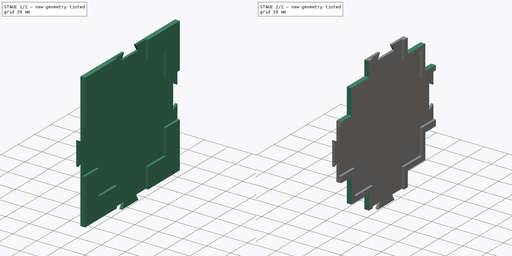
[diagram: build sequence overview — one tinted view per stage of 2, left to right]
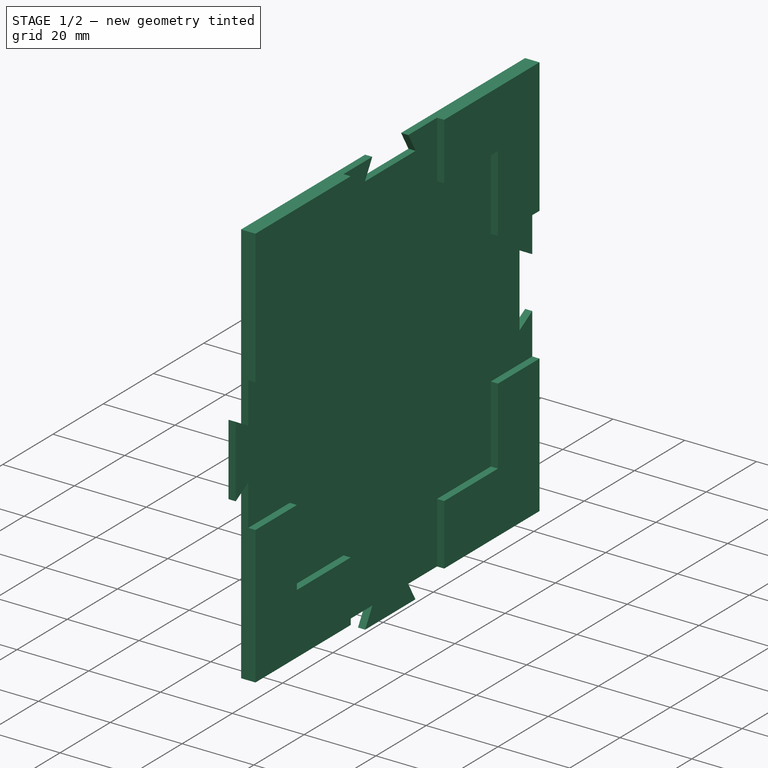
[diagram: stage 1 of 2 — iso view after this stage's code; geometry added in this stage tinted green]
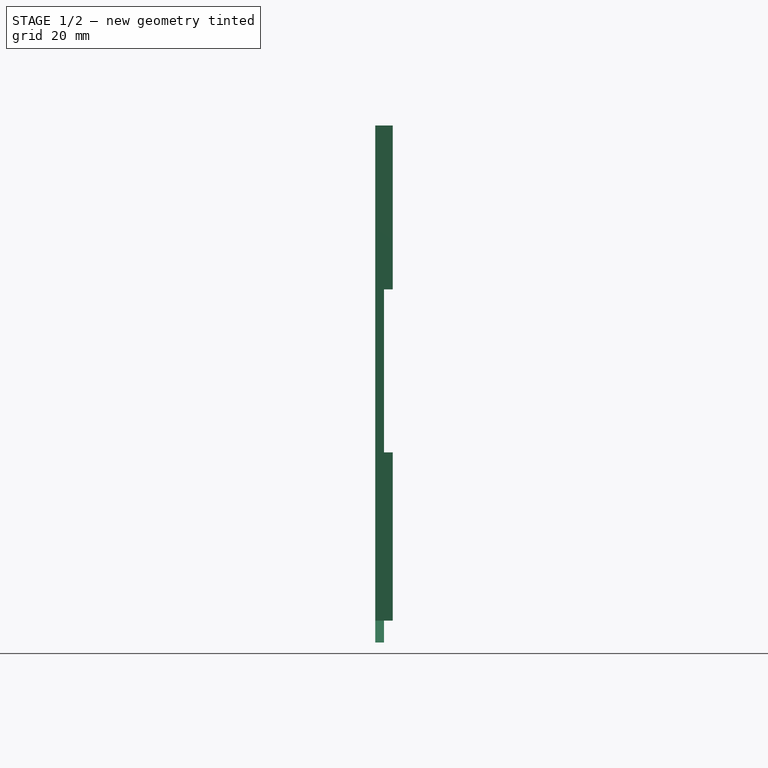
[diagram: stage 1 of 2 — front view after this stage's code; geometry added in this stage tinted green]
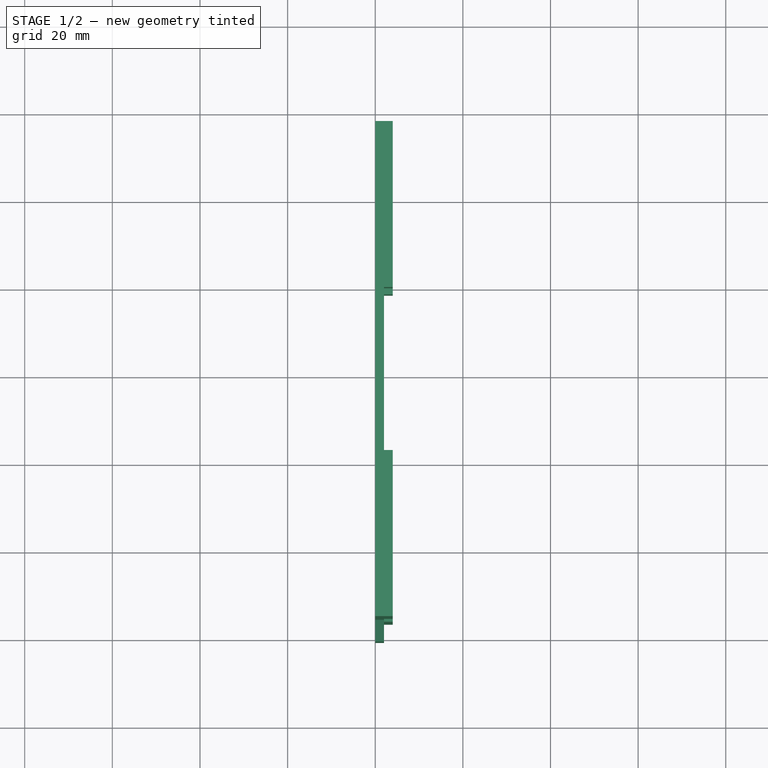
[diagram: stage 1 of 2 — top view after this stage's code; geometry added in this stage tinted green]
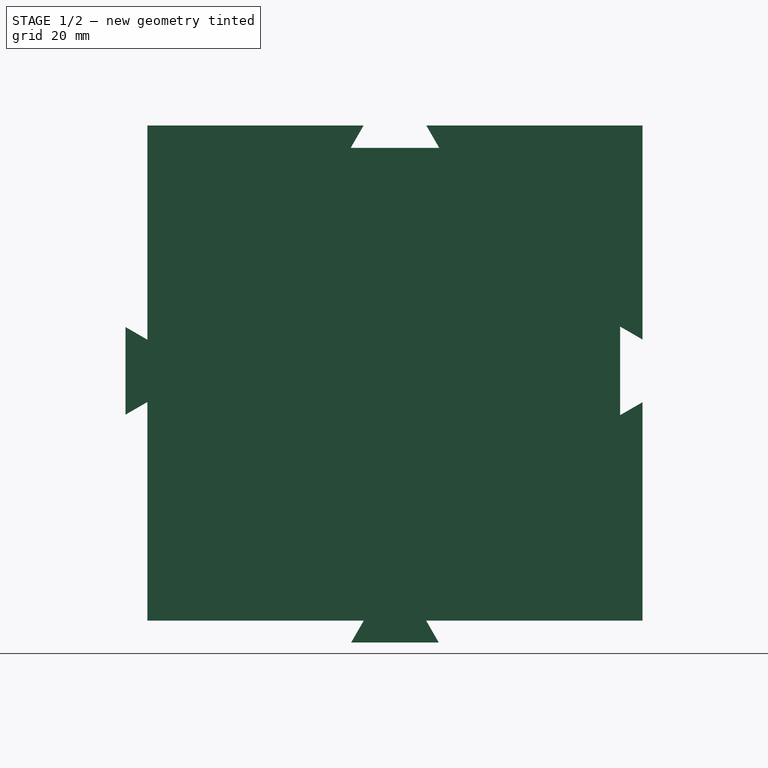
[diagram: stage 1 of 2 — right view after this stage's code; geometry added in this stage tinted green]
FCSTD DOCUMENT  (FreeCAD 0.14R3700 (Git))
Label: MunkenQuestTiltHolder
License: CC-BY 3.0
LicenseURL: http://creativecommons.org/licenses/by/3.0/
objects: Sketcher::SketchObject×3, PartDesign::Pocket×2, PartDesign::Pad×1
note: 9 computed .brp shape members not serialized (recipe doc carries the construction recipe); baked Part::Feature solids carry a one-line shape summary decoded from their .brp

FEATURE [Sketcher::SketchObject] Sketch001
  Placement = pos=(0,0,0) rot=(0.57735,0.57735,0.57735;2.0944rad)
  sketch-geometry (28):
    g0: LineSegment StartX=56.5 StartY=56 StartZ=0 EndX=56.5 EndY=39 EndZ=0
    g1: LineSegment StartX=-56.5 StartY=39 StartZ=0 EndX=-56.5 EndY=56 EndZ=0
    g2: LineSegment StartX=-56.5 StartY=-40 StartZ=0 EndX=-56.5 EndY=-57 EndZ=0
    g3: LineSegment StartX=56.5 StartY=-40 StartZ=0 EndX=56.5 EndY=-57 EndZ=0
    g4: LineSegment StartX=-39.5 StartY=-57 StartZ=0 EndX=-56.5 EndY=-57 EndZ=0
    g5: LineSegment StartX=39.5 StartY=-57 StartZ=0 EndX=56.5 EndY=-57 EndZ=0
    g6: LineSegment StartX=-56.5 StartY=56 StartZ=0 EndX=-39.5 EndY=56 EndZ=0
    g7: LineSegment StartX=39.5 StartY=56 StartZ=0 EndX=56.5 EndY=56 EndZ=0
    g8: LineSegment StartX=-61.5 StartY=10 StartZ=0 EndX=-61.5 EndY=-10 EndZ=0
    g9: LineSegment StartX=-61.5 StartY=-10 StartZ=0 EndX=-56.5 EndY=-7.11325 EndZ=0
    g10: LineSegment StartX=-56.5 StartY=7.11325 StartZ=0 EndX=-61.5 EndY=10 EndZ=0
    g11: LineSegment StartX=-56.5 StartY=39 StartZ=0 EndX=-56.5 EndY=7.11325 EndZ=0
    g12: LineSegment StartX=-56.5 StartY=-7.11325 StartZ=0 EndX=-56.5 EndY=-40 EndZ=0
    g13: LineSegment StartX=51.4 StartY=10.1 StartZ=0 EndX=51.4 EndY=-10.1 EndZ=0
    g14: LineSegment StartX=51.4 StartY=-10.1 StartZ=0 EndX=56.5 EndY=-7.15551 EndZ=0
    g15: LineSegment StartX=56.5 StartY=7.15551 StartZ=0 EndX=51.4 EndY=10.1 EndZ=0
    g16: LineSegment StartX=56.5 StartY=39 StartZ=0 EndX=56.5 EndY=7.15551 EndZ=0
    g17: LineSegment StartX=56.5 StartY=-7.15551 StartZ=0 EndX=56.5 EndY=-40 EndZ=0
    g18: LineSegment StartX=-7.11325 StartY=-57 StartZ=0 EndX=-10 EndY=-62 EndZ=0
    g19: LineSegment StartX=-10 StartY=-62 StartZ=0 EndX=10 EndY=-62 EndZ=0
    g20: LineSegment StartX=10 StartY=-62 StartZ=0 EndX=7.11325 EndY=-57 EndZ=0
    g21: LineSegment StartX=7.11325 StartY=-57 StartZ=0 EndX=39.5 EndY=-57 EndZ=0
    g22: LineSegment StartX=-39.5 StartY=-57 StartZ=0 EndX=-7.11325 EndY=-57 EndZ=0
    g23: LineSegment StartX=-7.15551 StartY=56 StartZ=0 EndX=-10.1 EndY=50.9 EndZ=0
    g24: LineSegment StartX=-10.1 StartY=50.9 StartZ=0 EndX=10.1 EndY=50.9 EndZ=0
    g25: LineSegment StartX=10.1 StartY=50.9 StartZ=0 EndX=7.15551 EndY=56 EndZ=0
    g26: LineSegment StartX=-39.5 StartY=56 StartZ=0 EndX=-7.15551 EndY=56 EndZ=0
    g27: LineSegment StartX=7.15551 StartY=56 StartZ=0 EndX=39.5 EndY=56 EndZ=0
  constraints (83):
    c: Vertical(g0)
    c: DistanceX(g-1,g1) = -56.5
    c: DistanceY(g-1,g1) = 56
    c: Vertical(g1)
    c: Vertical(g2)
    c: Tangent(g0,g3)
    c: Horizontal(g5)
    c: Coincident(g3,g5)
    c: Horizontal(g4)
    c: Coincident(g2,g4)
    c: DistanceX(g2,g3) = 113
    c: DistanceY(g2) = -17
    c: Horizontal(g6)
    c: Horizontal(g7)
    c: Coincident(g1,g6)
    c: Coincident(g0,g7)
    c: Equal(g1,g6)
    c: Equal(g6,g7)
    c: Equal(g7,g0)
    c: Equal(g0,g2)
    c: Equal(g2,g4)
    c: Equal(g4,g5)
    c: Equal(g5,g3)
    c: Coincident(g8,g9)
    c: Coincident(g8,g10)
    c: Vertical(g8)
    c: Angle(g8,g10) = 1.0472
    c: Angle(g9,g8) = 1.0472
    c: DistanceY(g8) = -20
    c: Equal(g10,g9)
    c: DistanceY(g-1,g8) = -10
    c: Vertical(g11)
    c: Coincident(g2,g12)
    c: Coincident(g1,g11)
    c: Coincident(g11,g10)
    c: PointOnObject(g12,g9)
    c: Tangent(g11,g12)
    c: DistanceX(g8,g10) = 5
    c: Coincident(g13,g14)
    c: Coincident(g13,g15)
    c: Angle(g13,g15) = 1.0472
    c: Vertical(g13)
    c: Angle(g14,g13) = 1.0472
    c: Equal(g15,g14)
    c: DistanceY(g13) = -20.2
    c: DistanceX(g13,g15) = 5.1
    c: Coincident(g0,g16)
    c: Vertical(g16)
    c: Coincident(g15,g16)
    c: DistanceY(g-1,g13) = -10.1
    c: Coincident(g3,g17)
    c: Coincident(g14,g17)
    c: Coincident(g18,g19)
    c: Coincident(g19,g20)
    c: Horizontal(g19)
    c: Angle(g19,g18) = 1.0472
    c: Angle(g20,g19) = 1.0472
    c: DistanceX(g19) = 20
    c: Equal(g18,g20)
    c: DistanceY(g19,g20) = 5
    c: DistanceX(g-1,g19) = 10
    c: Coincident(g5,g21)
    c: Horizontal(g21)
    c: Coincident(g20,g21)
    c: Coincident(g4,g22)
    c: Horizontal(g22)
    c: Coincident(g18,g22)
    c: Coincident(g23,g24)
    c: Coincident(g24,g25)
    c: Horizontal(g24)
    c: Angle(g24,g23) = 1.0472
    c: Angle(g25,g24) = 1.0472
    c: DistanceY(g25,g24) = -5.1
    c: DistanceX(g23,g24) = 20.2
    c: DistanceX(g-1,g24) = 10.1
    c: Horizontal(g26)
    c: Coincident(g6,g26)
    c: Horizontal(g27)
    c: Coincident(g7,g27)
    c: Equal(g23,g25)
    c: Coincident(g26,g23)
    c: Coincident(g25,g27)
    c: DistanceY(g0,g3) = -113
FEATURE [PartDesign::Pad] Pad
  Length = 4
  Length2 = 3
  Placement = pos=(0,0,0) rot=(0.57735,0.57735,0.57735;2.0944rad)
  Sketch = -> Sketch001
  Type = 0
FEATURE [Sketcher::SketchObject] Sketch
  ExternalGeometry = -> [Pad]
  Placement = pos=(4,0,0) rot=(0.57735,0.57735,0.57735;2.0944rad)
  Support = -> Pad [Face30]
  sketch-geometry (20):
    g0: LineSegment StartX=-40 StartY=40 StartZ=0 EndX=-18.6 EndY=40 EndZ=0
    g1: LineSegment StartX=40 StartY=40 StartZ=0 EndX=40 EndY=18.6 EndZ=0
    g2: LineSegment StartX=40 StartY=-40 StartZ=0 EndX=18.6 EndY=-40 EndZ=0
    g3: LineSegment StartX=18.6 StartY=-40 StartZ=0 EndX=18.6 EndY=-62 EndZ=0
    g4: LineSegment StartX=18.6 StartY=-62 StartZ=0 EndX=-18.6 EndY=-62 EndZ=0
    g5: LineSegment StartX=-18.6 StartY=-62 StartZ=0 EndX=-18.6 EndY=-40 EndZ=0
    g6: LineSegment StartX=-62 StartY=18.6 StartZ=0 EndX=-40 EndY=18.6 EndZ=0
    g7: LineSegment StartX=-40 StartY=-18.6 StartZ=0 EndX=-62 EndY=-18.6 EndZ=0
    g8: LineSegment StartX=-62 StartY=-18.6 StartZ=0 EndX=-62 EndY=18.6 EndZ=0
    g9: LineSegment StartX=-40 StartY=18.6 StartZ=0 EndX=-40 EndY=40 EndZ=0
    g10: LineSegment StartX=-18.6 StartY=62 StartZ=0 EndX=18.6 EndY=62 EndZ=0
    g11: LineSegment StartX=18.6 StartY=62 StartZ=0 EndX=18.6 EndY=40 EndZ=0
    g12: LineSegment StartX=-18.6 StartY=40 StartZ=0 EndX=-18.6 EndY=62 EndZ=0
    g13: LineSegment StartX=18.6 StartY=40 StartZ=0 EndX=40 EndY=40 EndZ=0
    g14: LineSegment StartX=40 StartY=18.6 StartZ=0 EndX=62 EndY=18.6 EndZ=0
    g15: LineSegment StartX=62 StartY=18.6 StartZ=0 EndX=62 EndY=-18.6 EndZ=0
    g16: LineSegment StartX=62 StartY=-18.6 StartZ=0 EndX=40 EndY=-18.6 EndZ=0
    g17: LineSegment StartX=40 StartY=-18.6 StartZ=0 EndX=40 EndY=-40 EndZ=0
    g18: LineSegment StartX=-40 StartY=-18.6 StartZ=0 EndX=-40 EndY=-40 EndZ=0
    g19: LineSegment StartX=-40 StartY=-40 StartZ=0 EndX=-18.6 EndY=-40 EndZ=0
  constraints (61):
    c: Coincident(g13,g1)
    c: Coincident(g17,g2)
    c: Coincident(g9,g0)
    c: Horizontal(g0)
    c: Horizontal(g2)
    c: Vertical(g1)
    c: Coincident(g3,g4)
    c: Coincident(g4,g5)
    c: Horizontal(g4)
    c: Vertical(g3)
    c: Vertical(g5)
    c: DistanceX(g4) = -37.2
    c: Equal(g5,g3)
    c: Coincident(g7,g8)
    c: Coincident(g8,g6)
    c: Horizontal(g6)
    c: Horizontal(g7)
    c: Coincident(g9,g6)
    c: Equal(g8,g4)
    c: Equal(g7,g5)
    c: Equal(g6,g7)
    c: Coincident(g10,g11)
    c: Coincident(g12,g10)
    c: Horizontal(g10)
    c: Vertical(g11)
    c: Vertical(g12)
    c: Coincident(g0,g12)
    c: Coincident(g13,g11)
    c: Equal(g4,g10)
    c: Equal(g12,g6)
    c: Equal(g11,g12)
    c: Coincident(g14,g15)
    c: Coincident(g15,g16)
    c: Horizontal(g14)
    c: Horizontal(g16)
    c: Vertical(g15)
    c: Coincident(g1,g14)
    c: Coincident(g17,g16)
    c: Equal(g14,g16)
    c: Equal(g16,g11)
    c: Equal(g15,g4)
    c: DistanceY(g-1,g1) = 40
    c: Coincident(g18,g19)
    c: Vertical(g18)
    c: Horizontal(g19)
    c: Coincident(g7,g18)
    c: Coincident(g5,g19)
    c: Coincident(g2,g3)
    c: DistanceX(g-1,g1) = 40
    c: Vertical(g17)
    c: Vertical(g9)
    c: Vertical(g8)
    c: DistanceX(g-1,g2) = 18.6
    c: Equal(g13,g1)
    c: Equal(g1,g17)
    c: Equal(g2,g17)
    c: Equal(g17,g0)
    c: Equal(g0,g9)
    c: Equal(g9,g18)
    c: Equal(g18,g19)
    c: Tangent(g4,g-5)
FEATURE [PartDesign::Pocket] Pocket
  Length = 2
  Placement = pos=(0,0,0) rot=(0.57735,0.57735,0.57735;2.0944rad)
  Sketch = -> Sketch
  Type = 0
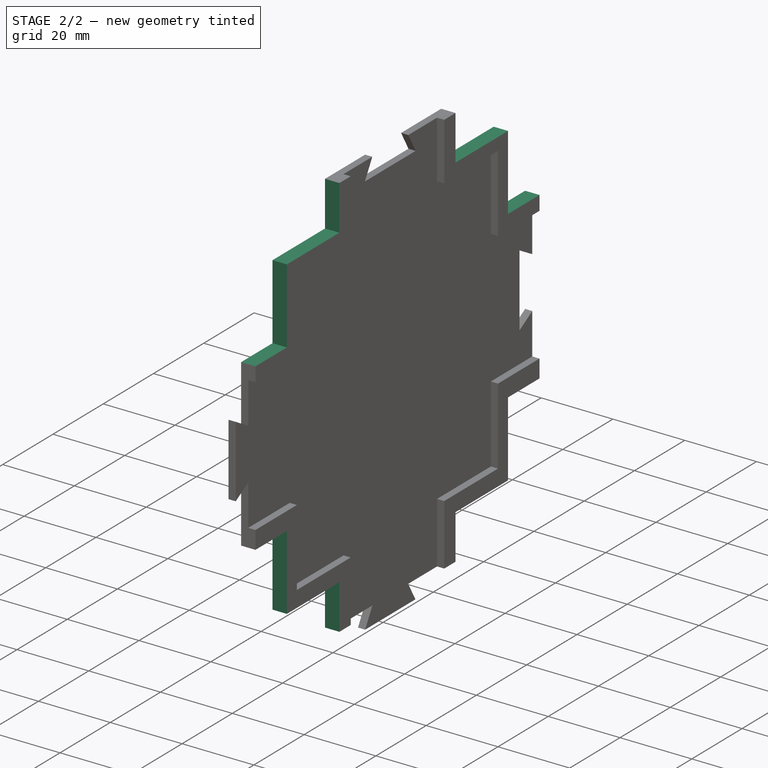
[diagram: stage 2 of 2 — iso view after this stage's code; geometry added in this stage tinted green]
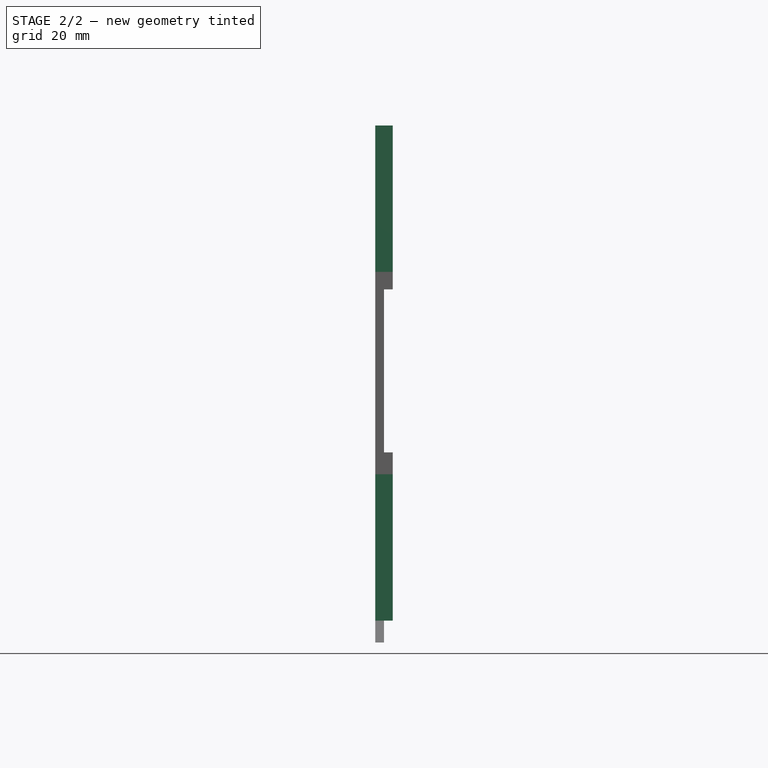
[diagram: stage 2 of 2 — front view after this stage's code; geometry added in this stage tinted green]
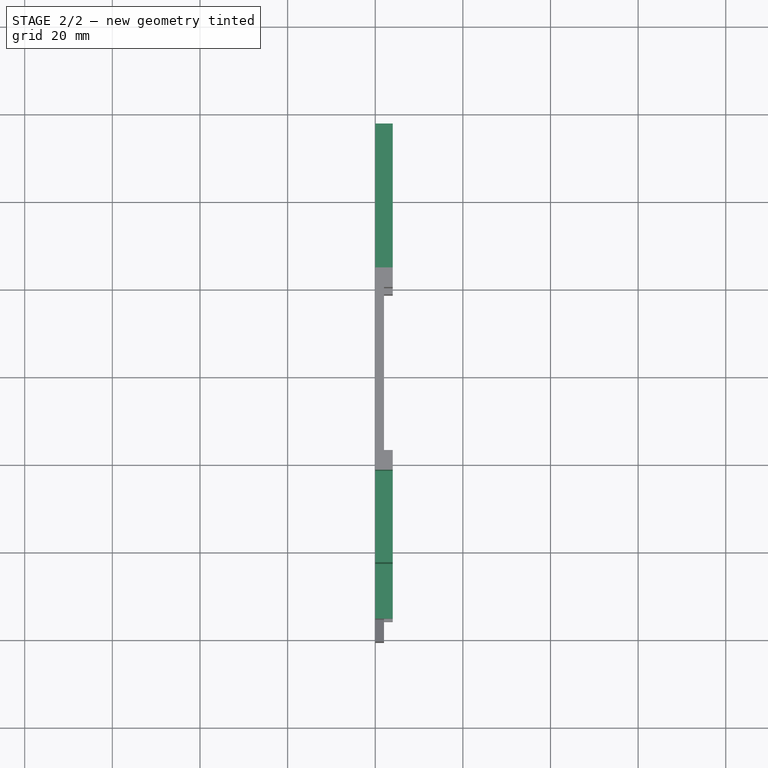
[diagram: stage 2 of 2 — top view after this stage's code; geometry added in this stage tinted green]
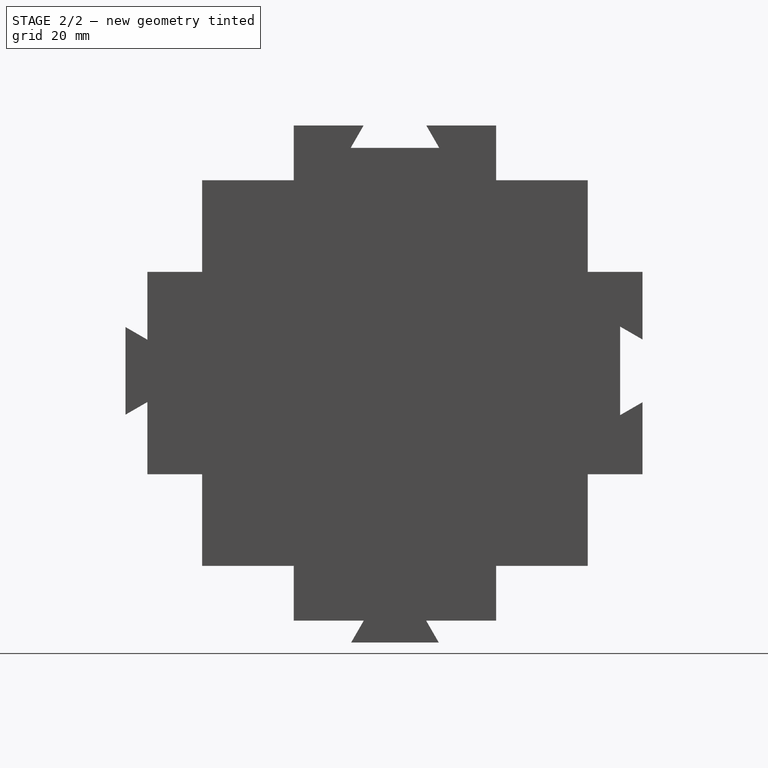
[diagram: stage 2 of 2 — right view after this stage's code; geometry added in this stage tinted green]
FEATURE [Sketcher::SketchObject] Sketch002
  Placement = pos=(4,0,0) rot=(0.57735,0.57735,0.57735;2.0944rad)
  Support = -> Pocket [Face5]
  sketch-geometry (24):
    g0: LineSegment StartX=-44 StartY=43.5 StartZ=0 EndX=-44 EndY=22.6 EndZ=0
    g1: LineSegment StartX=-44 StartY=22.6 StartZ=0 EndX=-56.5 EndY=22.6 EndZ=0
    g2: LineSegment StartX=-23.1 StartY=56 StartZ=0 EndX=-23.1 EndY=43.5 EndZ=0
    g3: LineSegment StartX=-23.1 StartY=43.5 StartZ=0 EndX=-44 EndY=43.5 EndZ=0
    g4: LineSegment StartX=-56.5 StartY=22.6 StartZ=0 EndX=-56.5 EndY=56 EndZ=0
    g5: LineSegment StartX=-56.5 StartY=56 StartZ=0 EndX=-23.1 EndY=56 EndZ=0
    g6: LineSegment StartX=23.1 StartY=43.5 StartZ=0 EndX=23.1 EndY=56 EndZ=0
    g7: LineSegment StartX=56.5 StartY=56 StartZ=0 EndX=56.5 EndY=22.6 EndZ=0
    g8: LineSegment StartX=56.5 StartY=22.6 StartZ=0 EndX=44 EndY=22.6 EndZ=0
    g9: LineSegment StartX=44 StartY=22.6 StartZ=0 EndX=44 EndY=43.5 EndZ=0
    g10: LineSegment StartX=44 StartY=43.5 StartZ=0 EndX=23.1 EndY=43.5 EndZ=0
    g11: LineSegment StartX=23.1 StartY=56 StartZ=0 EndX=56.5 EndY=56 EndZ=0
    g12: LineSegment StartX=-56.5 StartY=-23.6 StartZ=0 EndX=-44 EndY=-23.6 EndZ=0
    g13: LineSegment StartX=-44 StartY=-23.6 StartZ=0 EndX=-44 EndY=-44.5 EndZ=0
    g14: LineSegment StartX=-44 StartY=-44.5 StartZ=0 EndX=-23.1 EndY=-44.5 EndZ=0
    g15: LineSegment StartX=-23.1 StartY=-44.5 StartZ=0 EndX=-23.1 EndY=-57 EndZ=0
    g16: LineSegment StartX=-23.1 StartY=-57 StartZ=0 EndX=-56.5 EndY=-57 EndZ=0
    g17: LineSegment StartX=-56.5 StartY=-57 StartZ=0 EndX=-56.5 EndY=-23.6 EndZ=0
    g18: LineSegment StartX=23.1 StartY=-44.5 StartZ=0 EndX=44 EndY=-44.5 EndZ=0
    g19: LineSegment StartX=44 StartY=-44.5 StartZ=0 EndX=44 EndY=-23.6 EndZ=0
    g20: LineSegment StartX=44 StartY=-23.6 StartZ=0 EndX=56.5 EndY=-23.6 EndZ=0
    g21: LineSegment StartX=56.5 StartY=-23.6 StartZ=0 EndX=56.5 EndY=-57 EndZ=0
    g22: LineSegment StartX=56.5 StartY=-57 StartZ=0 EndX=23.1 EndY=-57 EndZ=0
    g23: LineSegment StartX=23.1 StartY=-57 StartZ=0 EndX=23.1 EndY=-44.5 EndZ=0
  constraints (63):
    c: Coincident(g0,g1)
    c: Horizontal(g1)
    c: Vertical(g0)
    c: Coincident(g2,g3)
    c: Horizontal(g3)
    c: Vertical(g2)
    c: Coincident(g0,g3)
    c: Horizontal(g5)
    c: Vertical(g4)
    c: Coincident(g4,g5)
    c: Coincident(g1,g4)
    c: Coincident(g2,g5)
    c: Coincident(g10,g6)
    c: Vertical(g6)
    c: Coincident(g7,g8)
    c: Coincident(g8,g9)
    c: Horizontal(g8)
    c: Vertical(g7)
    c: Vertical(g9)
    c: Coincident(g10,g9)
    c: Coincident(g7,g11)
    c: Coincident(g6,g11)
    c: Horizontal(g11)
    c: Equal(g2,g1)
    c: Equal(g1,g6)
    c: Equal(g6,g8)
    c: Coincident(g12,g13)
    c: Coincident(g13,g14)
    c: Coincident(g14,g15)
    c: Coincident(g15,g16)
    c: Coincident(g16,g17)
    c: Coincident(g12,g17)
    c: Vertical(g17)
    c: Horizontal(g12)
    c: Vertical(g13)
    c: Horizontal(g14)
    c: Vertical(g15)
    c: Horizontal(g16)
    c: Equal(g12,g15)
    c: Equal(g15,g1)
    c: Equal(g13,g14)
    c: Equal(g14,g0)
    c: Equal(g0,g3)
    c: Equal(g3,g10)
    c: Equal(g10,g9)
    c: Coincident(g18,g19)
    c: Coincident(g19,g20)
    c: Coincident(g20,g21)
    c: Coincident(g21,g22)
    c: Coincident(g22,g23)
    c: Coincident(g18,g23)
    c: Horizontal(g18)
    c: Horizontal(g22)
    c: Horizontal(g20)
    c: Vertical(g23)
    c: Vertical(g19)
    c: Vertical(g21)
    c: Equal(g23,g20)
    c: Equal(g20,g8)
    c: Equal(g18,g19)
    c: Equal(g19,g18)
    c: Equal(g18,g14)
    c: Horizontal(g10)
FEATURE [PartDesign::Pocket] Pocket001
  Length = 5
  Placement = pos=(0,0,0) rot=(0.57735,0.57735,0.57735;2.0944rad)
  Sketch = -> Sketch002
  Type = 0
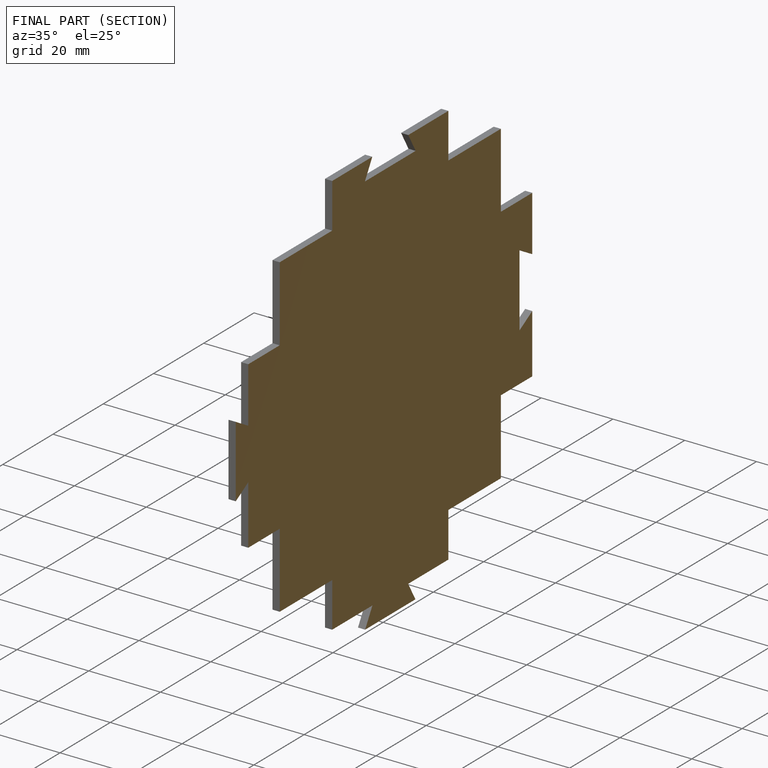
[diagram: finished part — half-section view (interior)]
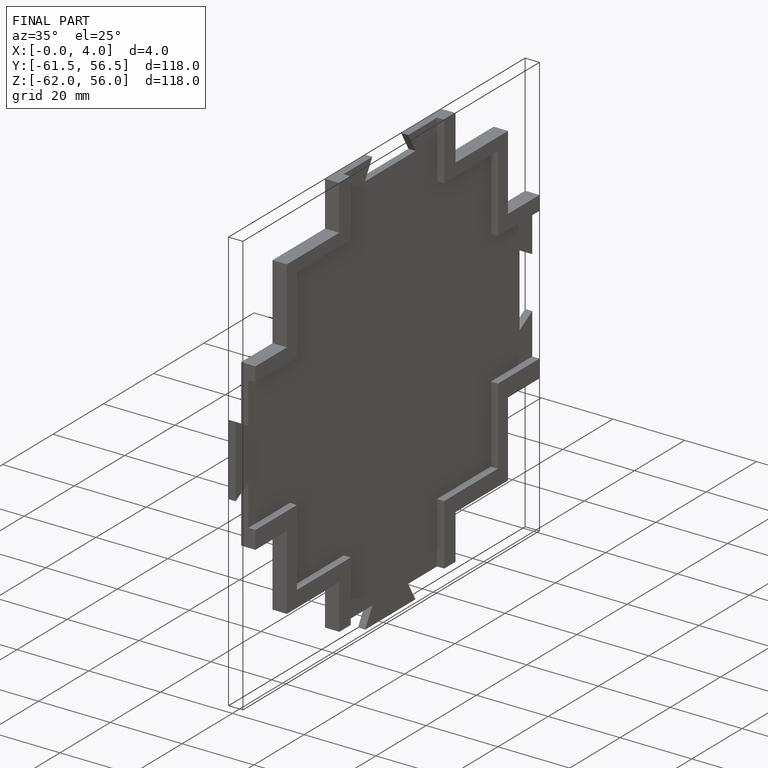
[diagram: finished part — iso view with bounding-box wireframe]
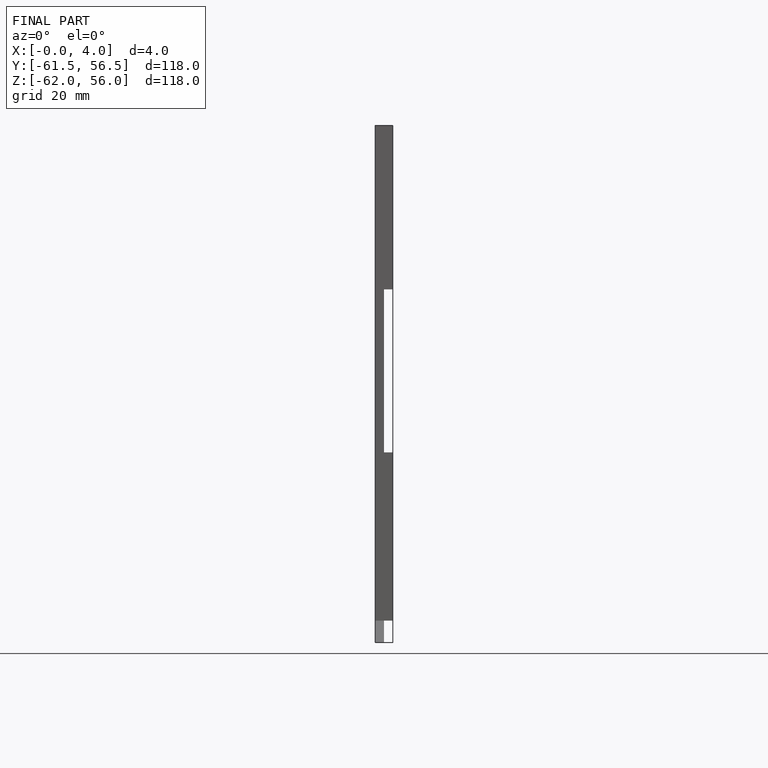
[diagram: finished part — front view with bounding-box wireframe]
